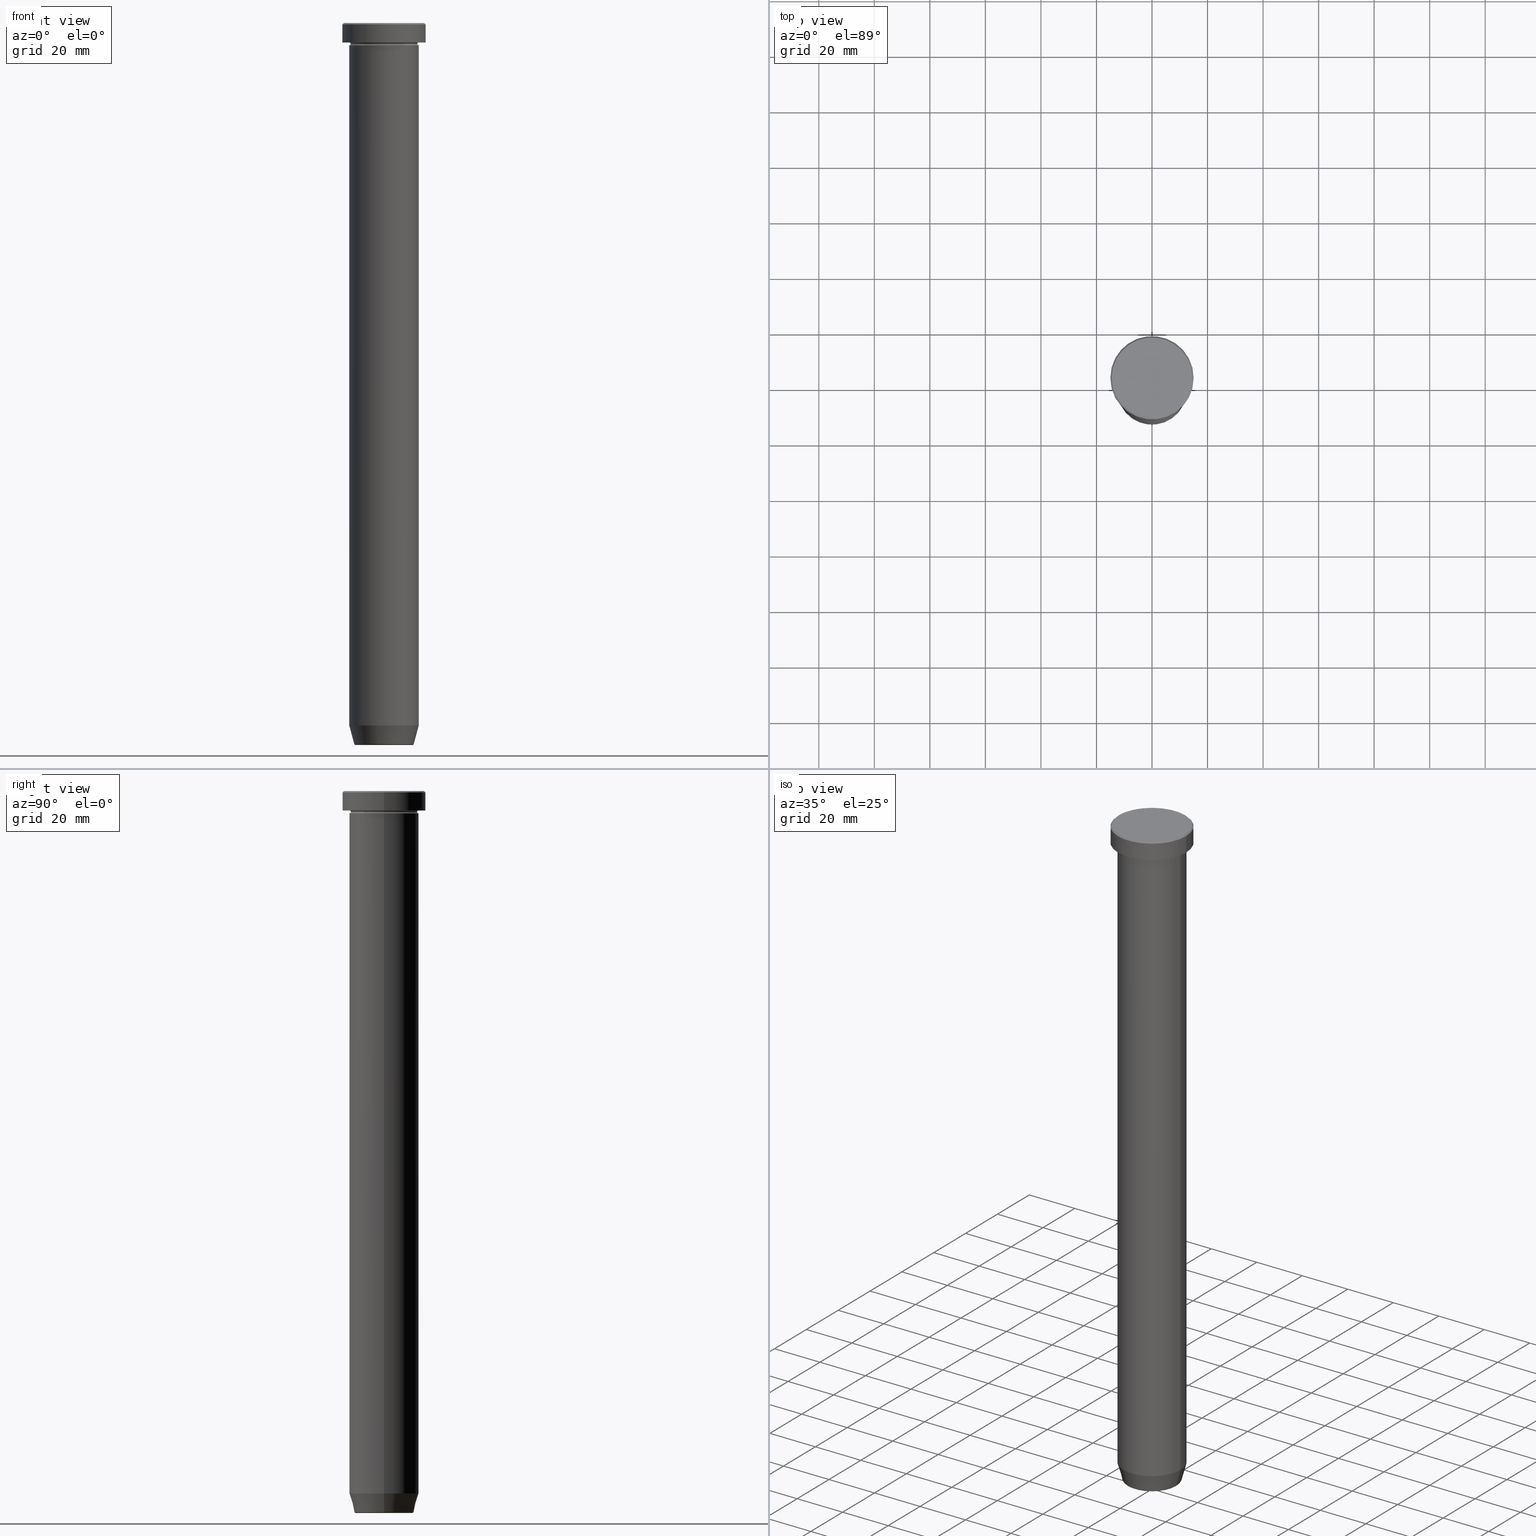
[diagram: canonical four-view strip — front | top / right | iso, engineering-drawing reading convention]
A machine part, canonical four-view strip (front | top / right | iso — engineering-drawing reading convention). The complete STEP part file that produces these views, byte-faithful:
ISO-10303-21;
HEADER;
FILE_DESCRIPTION (( 'STEP AP203' ),
    '1' );
FILE_NAME ('bdec.STEP',
    '2024-01-02T19:18:27',
    ( '' ),
    ( '' ),
    'SwSTEP 2.0',
    'SolidWorks 2019',
    '' );
FILE_SCHEMA (( 'CONFIG_CONTROL_DESIGN' ));
ENDSEC;

DATA;
#1 = PERSON_AND_ORGANIZATION ( #262, #277 ) ;
#2 = ADVANCED_FACE ( 'NONE', ( #326 ), #289, .T. ) ;
#3 = APPROVAL_STATUS ( 'not_yet_approved' ) ;
#4 = AXIS2_PLACEMENT_3D ( 'NONE', #107, #199, #596 ) ;
#5 = AXIS2_PLACEMENT_3D ( 'NONE', #553, #90, #412 ) ;
#6 = PERSON_AND_ORGANIZATION ( #262, #277 ) ;
#7 = LINE ( 'NONE', #194, #243 ) ;
#8 = DATE_AND_TIME ( #328, #65 ) ;
#9 = LINE ( 'NONE', #290, #281 ) ;
#10 = COORDINATED_UNIVERSAL_TIME_OFFSET ( 1, 0, .AHEAD. ) ;
#11 = EDGE_CURVE ( 'NONE', #578, #183, #291, .T. ) ;
#12 = DIRECTION ( 'NONE',  ( -1.000000000000000000, 0.000000000000000000, 0.000000000000000000 ) ) ;
#13 = AXIS2_PLACEMENT_3D ( 'NONE', #45, #416, #470 ) ;
#14 = DIRECTION ( 'NONE',  ( 0.000000000000000000, -0.000000000000000000, 1.000000000000000000 ) ) ;
#15 = VERTEX_POINT ( 'NONE', #564 ) ;
#16 = ORIENTED_EDGE ( 'NONE', *, *, #244, .T. ) ;
#17 = DIRECTION ( 'NONE',  ( -1.000000000000000000, 0.000000000000000000, 0.000000000000000000 ) ) ;
#18 = DIRECTION ( 'NONE',  ( -1.000000000000000000, 1.224646799147353454E-16, 0.000000000000000000 ) ) ;
#19 = CARTESIAN_POINT ( 'NONE',  ( 0.000000000000000000, 0.000000000000000000, -8.000000000000000000 ) ) ;
#20 = ORIENTED_EDGE ( 'NONE', *, *, #498, .T. ) ;
#21 = DIRECTION ( 'NONE',  ( -0.000000000000000000, -0.000000000000000000, 1.000000000000000000 ) ) ;
#22 = DIRECTION ( 'NONE',  ( 1.224646799147353207E-16, 1.000000000000000000, 0.000000000000000000 ) ) ;
#23 = EDGE_CURVE ( 'NONE', #15, #209, #475, .T. ) ;
#24 = LINE ( 'NONE', #66, #190 ) ;
#25 = CIRCLE ( 'NONE', #316, 15.00000000000000000 ) ;
#26 = EDGE_LOOP ( 'NONE', ( #198, #92 ) ) ;
#27 = CARTESIAN_POINT ( 'NONE',  ( -10.24069215899266361, 1.283696036640843164E-15, -260.0000000000000000 ) ) ;
#28 = CARTESIAN_POINT ( 'NONE',  ( -12.50000000000000000, 1.530808498934191521E-15, -7.500000000000000000 ) ) ;
#29 = CYLINDRICAL_SURFACE ( 'NONE', #221, 12.50000000000000000 ) ;
#30 = ORIENTED_EDGE ( 'NONE', *, *, #597, .T. ) ;
#31 = DIRECTION ( 'NONE',  ( 0.000000000000000000, 0.000000000000000000, -1.000000000000000000 ) ) ;
#32 = CARTESIAN_POINT ( 'NONE',  ( 0.000000000000000000, 2.571758278209441582E-14, -260.0000000000000000 ) ) ;
#33 = ORIENTED_EDGE ( 'NONE', *, *, #473, .F. ) ;
#34 = CARTESIAN_POINT ( 'NONE',  ( 0.000000000000000000, 0.000000000000000000, -6.999999999999999112 ) ) ;
#35 = ADVANCED_FACE ( 'NONE', ( #114 ), #196, .F. ) ;
#36 = CARTESIAN_POINT ( 'NONE',  ( 15.00000000000000000, 0.000000000000000000, -0.4999999999999831246 ) ) ;
#37 = AXIS2_PLACEMENT_3D ( 'NONE', #128, #176, #598 ) ;
#38 = ORIENTED_EDGE ( 'NONE', *, *, #238, .F. ) ;
#39 = CC_DESIGN_APPROVAL ( #103, ( #432 ) ) ;
#40 = CARTESIAN_POINT ( 'NONE',  ( -15.00000000000000000, 1.836970198721029589E-15, -0.4999999999999831246 ) ) ;
#41 = ORIENTED_EDGE ( 'NONE', *, *, #594, .F. ) ;
#42 = CC_DESIGN_PERSON_AND_ORGANIZATION_ASSIGNMENT ( #375, #560, ( #305 ) ) ;
#43 = ORIENTED_EDGE ( 'NONE', *, *, #566, .T. ) ;
#44 = DIRECTION ( 'NONE',  ( 1.000000000000000000, 0.000000000000000000, 0.000000000000000000 ) ) ;
#45 = CARTESIAN_POINT ( 'NONE',  ( 0.000000000000000000, 15.00000000000000000, -6.999999999999999112 ) ) ;
#46 = CARTESIAN_POINT ( 'NONE',  ( 0.000000000000000000, 0.000000000000000000, 0.000000000000000000 ) ) ;
#47 = DIRECTION ( 'NONE',  ( 1.000000000000000000, 0.000000000000000000, 0.000000000000000000 ) ) ;
#48 = AXIS2_PLACEMENT_3D ( 'NONE', #387, #153, #342 ) ;
#49 = DIRECTION ( 'NONE',  ( -1.000000000000000000, 0.000000000000000000, 0.000000000000000000 ) ) ;
#50 = CARTESIAN_POINT ( 'NONE',  ( 0.000000000000000000, 0.000000000000000000, 0.000000000000000000 ) ) ;
#51 = ADVANCED_FACE ( 'NONE', ( #384 ), #582, .T. ) ;
#52 = CIRCLE ( 'NONE', #222, 10.24069215899266361 ) ;
#53 = LOCAL_TIME ( 20, 18, 27.00000000000000000, #285 ) ;
#54 = PERSON_AND_ORGANIZATION ( #262, #277 ) ;
#55 = DIRECTION ( 'NONE',  ( -0.000000000000000000, -0.000000000000000000, 1.000000000000000000 ) ) ;
#56 = COORDINATED_UNIVERSAL_TIME_OFFSET ( 1, 0, .AHEAD. ) ;
#57 = ADVANCED_FACE ( 'NONE', ( #208 ), #337, .T. ) ;
#58 = FACE_OUTER_BOUND ( 'NONE', #67, .T. ) ;
#59 = CIRCLE ( 'NONE', #139, 12.00000000000000000 ) ;
#60 = ADVANCED_FACE ( 'NONE', ( #284 ), #525, .T. ) ;
#61 = DIRECTION ( 'NONE',  ( -1.000000000000000000, 0.000000000000000000, 0.000000000000000000 ) ) ;
#62 = ORIENTED_EDGE ( 'NONE', *, *, #360, .T. ) ;
#63 = CARTESIAN_POINT ( 'NONE',  ( -12.50000000000000000, 0.000000000000000000, -7.500000000000000000 ) ) ;
#64 = AXIS2_PLACEMENT_3D ( 'NONE', #392, #303, #450 ) ;
#65 = LOCAL_TIME ( 20, 18, 27.00000000000000000, #418 ) ;
#66 = CARTESIAN_POINT ( 'NONE',  ( 12.50000000000000000, 0.000000000000000000, 0.000000000000000000 ) ) ;
#67 = EDGE_LOOP ( 'NONE', ( #533, #583 ) ) ;
#68 = LINE ( 'NONE', #444, #173 ) ;
#69 = EDGE_LOOP ( 'NONE', ( #253, #180, #362, #592 ) ) ;
#70 = DIRECTION ( 'NONE',  ( -1.000000000000000000, 1.224646799147353454E-16, 0.000000000000000000 ) ) ;
#71 = DIRECTION ( 'NONE',  ( 0.000000000000000000, -1.000000000000000000, 0.000000000000000000 ) ) ;
#72 = ORIENTED_EDGE ( 'NONE', *, *, #171, .T. ) ;
#73 = DIRECTION ( 'NONE',  ( 0.000000000000000000, -0.000000000000000000, 1.000000000000000000 ) ) ;
#74 = AXIS2_PLACEMENT_3D ( 'NONE', #456, #126, #85 ) ;
#75 = CIRCLE ( 'NONE', #584, 10.72365507213718949 ) ;
#76 = CARTESIAN_POINT ( 'NONE',  ( 12.50000000000000000, 0.000000000000000000, -54.99999999999999289 ) ) ;
#77 = CIRCLE ( 'NONE', #550, 0.5000000000000004441 ) ;
#78 = ORIENTED_EDGE ( 'NONE', *, *, #137, .F. ) ;
#79 = CARTESIAN_POINT ( 'NONE',  ( 0.000000000000000000, 0.000000000000000000, 0.000000000000000000 ) ) ;
#80 = DIRECTION ( 'NONE',  ( 1.000000000000000000, 0.000000000000000000, 0.000000000000000000 ) ) ;
#81 = ORIENTED_EDGE ( 'NONE', *, *, #23, .F. ) ;
#82 = CARTESIAN_POINT ( 'NONE',  ( 0.000000000000000000, 0.000000000000000000, -54.99999999999999289 ) ) ;
#83 = EDGE_CURVE ( 'NONE', #442, #314, #86, .T. ) ;
#84 = FACE_OUTER_BOUND ( 'NONE', #256, .T. ) ;
#85 = DIRECTION ( 'NONE',  ( 1.000000000000000000, 0.000000000000000000, 0.000000000000000000 ) ) ;
#86 = CIRCLE ( 'NONE', #270, 12.50000000000000000 ) ;
#87 = EDGE_LOOP ( 'NONE', ( #572, #72 ) ) ;
#88 = VECTOR ( 'NONE', #397, 1000.000000000000000 ) ;
#89 = VERTEX_POINT ( 'NONE', #441 ) ;
#90 = DIRECTION ( 'NONE',  ( -0.000000000000000000, -0.000000000000000000, 1.000000000000000000 ) ) ;
#91 = SECURITY_CLASSIFICATION ( '', '', #144 ) ;
#92 = ORIENTED_EDGE ( 'NONE', *, *, #83, .F. ) ;
#93 = APPLICATION_PROTOCOL_DEFINITION ( 'international standard', 'config_control_design', 1994, #512 ) ;
#94 = EDGE_CURVE ( 'NONE', #314, #15, #24, .T. ) ;
#95 = DIRECTION ( 'NONE',  ( -0.000000000000000000, -0.000000000000000000, 1.000000000000000000 ) ) ;
#96 = CARTESIAN_POINT ( 'NONE',  ( -12.50000000000000000, 1.530808498934191521E-15, -54.99999999999999289 ) ) ;
#97 = CIRCLE ( 'NONE', #511, 12.00000000000000000 ) ;
#98 = DIRECTION ( 'NONE',  ( 1.000000000000000000, 0.000000000000000000, 0.000000000000000000 ) ) ;
#99 = AXIS2_PLACEMENT_3D ( 'NONE', #507, #220, #125 ) ;
#100 = DIRECTION ( 'NONE',  ( 1.000000000000000000, 0.000000000000000000, 0.000000000000000000 ) ) ;
#101 = EDGE_CURVE ( 'NONE', #226, #227, #97, .T. ) ;
#102 = APPROVAL_DATE_TIME ( #562, #574 ) ;
#103 = APPROVAL ( #237, 'NEUR�EN�' ) ;
#104 = AXIS2_PLACEMENT_3D ( 'NONE', #363, #267, #229 ) ;
#105 = PERSON_AND_ORGANIZATION ( #262, #277 ) ;
#106 = VERTEX_POINT ( 'NONE', #246 ) ;
#107 = CARTESIAN_POINT ( 'NONE',  ( 0.000000000000000000, 12.50000000000000000, -54.99999999999999289 ) ) ;
#108 = CC_DESIGN_PERSON_AND_ORGANIZATION_ASSIGNMENT ( #189, #371, ( #91 ) ) ;
#109 = CARTESIAN_POINT ( 'NONE',  ( 0.000000000000000000, 0.000000000000000000, 0.000000000000000000 ) ) ;
#110 = DIRECTION ( 'NONE',  ( 0.000000000000000000, 0.000000000000000000, -1.000000000000000000 ) ) ;
#111 = AXIS2_PLACEMENT_3D ( 'NONE', #352, #536, #123 ) ;
#112 = CIRCLE ( 'NONE', #500, 0.5000000000000004441 ) ;
#113 = CC_DESIGN_APPROVAL ( #574, ( #305 ) ) ;
#114 = FACE_OUTER_BOUND ( 'NONE', #119, .T. ) ;
#115 = CARTESIAN_POINT ( 'NONE',  ( -12.50000000000000000, 1.530808498934191521E-15, -54.99999999999999289 ) ) ;
#116 = ADVANCED_FACE ( 'NONE', ( #380 ), #427, .T. ) ;
#117 = ORIENTED_EDGE ( 'NONE', *, *, #188, .F. ) ;
#118 = LINE ( 'NONE', #300, #523 ) ;
#119 = EDGE_LOOP ( 'NONE', ( #501, #261, #241, #33 ) ) ;
#120 = FACE_OUTER_BOUND ( 'NONE', #299, .T. ) ;
#121 = CONICAL_SURFACE ( 'NONE', #415, 10.62435565298213902, 0.2617993877991495744 ) ;
#122 = EDGE_CURVE ( 'NONE', #227, #226, #59, .T. ) ;
#123 = DIRECTION ( 'NONE',  ( 1.000000000000000000, 0.000000000000000000, 0.000000000000000000 ) ) ;
#124 = ORIENTED_EDGE ( 'NONE', *, *, #473, .T. ) ;
#125 = DIRECTION ( 'NONE',  ( 1.000000000000000000, 0.000000000000000000, 0.000000000000000000 ) ) ;
#126 = DIRECTION ( 'NONE',  ( -0.000000000000000000, -0.000000000000000000, 1.000000000000000000 ) ) ;
#127 = EDGE_LOOP ( 'NONE', ( #319, #150 ) ) ;
#128 = CARTESIAN_POINT ( 'NONE',  ( 0.000000000000000000, 0.000000000000000000, -54.99999999999999289 ) ) ;
#129 = CARTESIAN_POINT ( 'NONE',  ( 12.50000000000000000, 0.000000000000000000, 0.000000000000000000 ) ) ;
#130 = PRODUCT_RELATED_PRODUCT_CATEGORY ( 'detail', '', ( #591 ) ) ;
#131 = DIRECTION ( 'NONE',  ( -0.000000000000000000, -0.000000000000000000, 1.000000000000000000 ) ) ;
#132 = VERTEX_POINT ( 'NONE', #76 ) ;
#133 = ORIENTED_EDGE ( 'NONE', *, *, #167, .F. ) ;
#134 = ORIENTED_EDGE ( 'NONE', *, *, #122, .F. ) ;
#135 = DIRECTION ( 'NONE',  ( 0.000000000000000000, 0.000000000000000000, -1.000000000000000000 ) ) ;
#136 = DATE_TIME_ROLE ( 'creation_date' ) ;
#137 = EDGE_CURVE ( 'NONE', #227, #15, #487, .T. ) ;
#138 = DATE_AND_TIME ( #331, #394 ) ;
#139 = AXIS2_PLACEMENT_3D ( 'NONE', #437, #499, #168 ) ;
#140 = CIRCLE ( 'NONE', #145, 10.72365507213718949 ) ;
#141 = AXIS2_PLACEMENT_3D ( 'NONE', #50, #476, #100 ) ;
#142 = DIRECTION ( 'NONE',  ( -0.000000000000000000, -0.000000000000000000, 1.000000000000000000 ) ) ;
#143 = ORIENTED_EDGE ( 'NONE', *, *, #11, .T. ) ;
#144 = SECURITY_CLASSIFICATION_LEVEL ( 'unclassified' ) ;
#145 = AXIS2_PLACEMENT_3D ( 'NONE', #187, #556, #544 ) ;
#146 = CARTESIAN_POINT ( 'NONE',  ( 0.000000000000000000, 0.000000000000000000, -6.999999999999999112 ) ) ;
#147 = ORIENTED_EDGE ( 'NONE', *, *, #311, .F. ) ;
#148 = FACE_OUTER_BOUND ( 'NONE', #347, .T. ) ;
#149 = DIRECTION ( 'NONE',  ( -0.000000000000000000, -0.000000000000000000, 1.000000000000000000 ) ) ;
#150 = ORIENTED_EDGE ( 'NONE', *, *, #160, .T. ) ;
#151 = LINE ( 'NONE', #297, #460 ) ;
#152 = APPLICATION_CONTEXT ( 'configuration controlled 3d designs of mechanical parts and assemblies' ) ;
#153 = DIRECTION ( 'NONE',  ( -0.000000000000000000, -0.000000000000000000, 1.000000000000000000 ) ) ;
#154 = DIRECTION ( 'NONE',  ( 1.000000000000000000, 0.000000000000000000, 0.000000000000000000 ) ) ;
#155 = ADVANCED_FACE ( 'NONE', ( #448 ), #29, .T. ) ;
#156 = ORIENTED_EDGE ( 'NONE', *, *, #122, .T. ) ;
#157 = DIRECTION ( 'NONE',  ( -1.224646799147353207E-16, 1.000000000000000000, 0.000000000000000000 ) ) ;
#158 = TOROIDAL_SURFACE ( 'NONE', #515, 12.50000000000000000, 0.5000000000000000000 ) ;
#159 = CIRCLE ( 'NONE', #236, 15.00000000000000000 ) ;
#160 = EDGE_CURVE ( 'NONE', #578, #493, #372, .T. ) ;
#161 = ORIENTED_EDGE ( 'NONE', *, *, #179, .T. ) ;
#162 = CARTESIAN_POINT ( 'NONE',  ( 12.50000000000000000, 1.530808498934191521E-15, -7.500000000000000000 ) ) ;
#163 = CARTESIAN_POINT ( 'NONE',  ( 12.50000000000000000, 0.000000000000000000, -54.99999999999999289 ) ) ;
#164 = APPROVAL ( #3, 'NEUR�EN�' ) ;
#165 = DIRECTION ( 'NONE',  ( 0.7071067811865463515, 8.659560562354919300E-17, -0.7071067811865487940 ) ) ;
#166 = ORIENTED_EDGE ( 'NONE', *, *, #360, .F. ) ;
#167 = EDGE_CURVE ( 'NONE', #493, #578, #413, .T. ) ;
#168 = DIRECTION ( 'NONE',  ( 1.000000000000000000, 0.000000000000000000, 0.000000000000000000 ) ) ;
#169 = ORIENTED_EDGE ( 'NONE', *, *, #11, .F. ) ;
#170 = DIRECTION ( 'NONE',  ( -0.000000000000000000, -1.000000000000000000, -0.000000000000000000 ) ) ;
#171 = EDGE_CURVE ( 'NONE', #538, #132, #459, .T. ) ;
#172 = VECTOR ( 'NONE', #131, 1000.000000000000000 ) ;
#173 = VECTOR ( 'NONE', #390, 1000.000000000000000 ) ;
#174 = CARTESIAN_POINT ( 'NONE',  ( 12.50000000000000000, 0.000000000000000000, -7.500000000000000000 ) ) ;
#175 = ORIENTED_EDGE ( 'NONE', *, *, #472, .T. ) ;
#176 = DIRECTION ( 'NONE',  ( -0.000000000000000000, -0.000000000000000000, 1.000000000000000000 ) ) ;
#177 = EDGE_LOOP ( 'NONE', ( #20, #453, #568, #117 ) ) ;
#178 = CARTESIAN_POINT ( 'NONE',  ( 0.000000000000000000, 0.000000000000000000, -260.0000000000000000 ) ) ;
#179 = EDGE_CURVE ( 'NONE', #209, #15, #431, .T. ) ;
#180 = ORIENTED_EDGE ( 'NONE', *, *, #440, .T. ) ;
#181 = CARTESIAN_POINT ( 'NONE',  ( 0.000000000000000000, 0.000000000000000000, -54.99999999999999289 ) ) ;
#182 = CIRCLE ( 'NONE', #593, 10.24069215899266361 ) ;
#183 = VERTEX_POINT ( 'NONE', #36 ) ;
#184 =( NAMED_UNIT ( * ) PLANE_ANGLE_UNIT ( ) SI_UNIT ( $, .RADIAN. ) );
#185 = LOCAL_TIME ( 20, 18, 27.00000000000000000, #232 ) ;
#186 = FACE_BOUND ( 'NONE', #542, .T. ) ;
#187 = CARTESIAN_POINT ( 'NONE',  ( 0.000000000000000000, 0.000000000000000000, -259.6294095225512706 ) ) ;
#188 = EDGE_CURVE ( 'NONE', #585, #183, #405, .T. ) ;
#189 = PERSON_AND_ORGANIZATION ( #262, #277 ) ;
#190 = VECTOR ( 'NONE', #55, 1000.000000000000000 ) ;
#191 = AXIS2_PLACEMENT_3D ( 'NONE', #174, #462, #255 ) ;
#192 = AXIS2_PLACEMENT_3D ( 'NONE', #82, #454, #539 ) ;
#193 = PERSON_AND_ORGANIZATION_ROLE ( 'creator' ) ;
#194 = CARTESIAN_POINT ( 'NONE',  ( -12.50000000000000000, 1.530808498934191521E-15, 0.000000000000000000 ) ) ;
#195 = ADVANCED_FACE ( 'NONE', ( #313 ), #513, .T. ) ;
#196 = TOROIDAL_SURFACE ( 'NONE', #321, 12.50000000000000000, 0.5000000000000000000 ) ;
#197 = DIRECTION ( 'NONE',  ( 1.000000000000000000, 0.000000000000000000, 0.000000000000000000 ) ) ;
#198 = ORIENTED_EDGE ( 'NONE', *, *, #566, .F. ) ;
#199 = DIRECTION ( 'NONE',  ( 0.000000000000000000, 0.000000000000000000, -1.000000000000000000 ) ) ;
#200 = DIRECTION ( 'NONE',  ( -0.000000000000000000, -0.000000000000000000, 1.000000000000000000 ) ) ;
#201 = EDGE_LOOP ( 'NONE', ( #580, #367 ) ) ;
#202 = CARTESIAN_POINT ( 'NONE',  ( -14.50000000000001776, 0.000000000000000000, 0.000000000000000000 ) ) ;
#203 = EDGE_CURVE ( 'NONE', #259, #106, #334, .T. ) ;
#204 = ORIENTED_EDGE ( 'NONE', *, *, #179, .F. ) ;
#205 = CYLINDRICAL_SURFACE ( 'NONE', #64, 12.50000000000000000 ) ;
#206 = CARTESIAN_POINT ( 'NONE',  ( 10.24069215899266361, 0.000000000000000000, -259.5000000000000000 ) ) ;
#207 = UNCERTAINTY_MEASURE_WITH_UNIT (LENGTH_MEASURE( 1.000000000000000082E-05 ), #408, 'distance_accuracy_value', 'NONE');
#208 = FACE_OUTER_BOUND ( 'NONE', #127, .T. ) ;
#209 = VERTEX_POINT ( 'NONE', #481 ) ;
#210 = CARTESIAN_POINT ( 'NONE',  ( 0.000000000000000000, 0.000000000000000000, -259.6294095225512706 ) ) ;
#211 = AXIS2_PLACEMENT_3D ( 'NONE', #109, #286, #61 ) ;
#212 = TOROIDAL_SURFACE ( 'NONE', #346, 10.24069215899266361, 0.5000000000000000000 ) ;
#213 = CARTESIAN_POINT ( 'NONE',  ( 0.000000000000000000, 0.000000000000000000, -7.500000000000000000 ) ) ;
#214 = ORIENTED_EDGE ( 'NONE', *, *, #23, .T. ) ;
#215 = CYLINDRICAL_SURFACE ( 'NONE', #48, 12.50000000000000000 ) ;
#216 = DIRECTION ( 'NONE',  ( -0.000000000000000000, -0.000000000000000000, 1.000000000000000000 ) ) ;
#217 = EDGE_LOOP ( 'NONE', ( #219, #269, #161, #78 ) ) ;
#218 = DIRECTION ( 'NONE',  ( 0.000000000000000000, 0.000000000000000000, -1.000000000000000000 ) ) ;
#219 = ORIENTED_EDGE ( 'NONE', *, *, #101, .F. ) ;
#220 = DIRECTION ( 'NONE',  ( -0.000000000000000000, -0.000000000000000000, 1.000000000000000000 ) ) ;
#221 = AXIS2_PLACEMENT_3D ( 'NONE', #357, #216, #80 ) ;
#222 = AXIS2_PLACEMENT_3D ( 'NONE', #439, #31, #490 ) ;
#223 = ORIENTED_EDGE ( 'NONE', *, *, #504, .T. ) ;
#224 = DIRECTION ( 'NONE',  ( -0.000000000000000000, -0.000000000000000000, 1.000000000000000000 ) ) ;
#225 = ADVANCED_FACE ( 'NONE', ( #426 ), #158, .F. ) ;
#226 = VERTEX_POINT ( 'NONE', #551 ) ;
#227 = VERTEX_POINT ( 'NONE', #369 ) ;
#228 = CIRCLE ( 'NONE', #563, 15.00000000000000000 ) ;
#229 = DIRECTION ( 'NONE',  ( 1.000000000000000000, 0.000000000000000000, 0.000000000000000000 ) ) ;
#230 = ADVANCED_FACE ( 'NONE', ( #148 ), #283, .T. ) ;
#231 = CALENDAR_DATE ( 2024, 2, 1 ) ;
#232 = COORDINATED_UNIVERSAL_TIME_OFFSET ( 1, 0, .AHEAD. ) ;
#233 = AXIS2_PLACEMENT_3D ( 'NONE', #46, #428, #298 ) ;
#234 = PERSON_AND_ORGANIZATION_ROLE ( 'creator' ) ;
#235 = AXIS2_PLACEMENT_3D ( 'NONE', #518, #379, #477 ) ;
#236 = AXIS2_PLACEMENT_3D ( 'NONE', #458, #310, #510 ) ;
#237 = APPROVAL_STATUS ( 'not_yet_approved' ) ;
#238 = EDGE_CURVE ( 'NONE', #382, #353, #9, .T. ) ;
#239 = DIRECTION ( 'NONE',  ( -0.000000000000000000, -0.000000000000000000, 1.000000000000000000 ) ) ;
#240 = APPROVAL_ROLE ( '' ) ;
#241 = ORIENTED_EDGE ( 'NONE', *, *, #244, .F. ) ;
#242 = CARTESIAN_POINT ( 'NONE',  ( 0.000000000000000000, 0.000000000000000000, -6.999999999999999112 ) ) ;
#243 = VECTOR ( 'NONE', #376, 1000.000000000000000 ) ;
#244 = EDGE_CURVE ( 'NONE', #106, #259, #446, .T. ) ;
#245 = LOCAL_TIME ( 20, 18, 27.00000000000000000, #10 ) ;
#246 = CARTESIAN_POINT ( 'NONE',  ( -12.50000000000000000, 0.000000000000000000, -6.999999999999999112 ) ) ;
#247 = ORIENTED_EDGE ( 'NONE', *, *, #268, .F. ) ;
#248 = DIRECTION ( 'NONE',  ( 1.000000000000000000, 0.000000000000000000, 0.000000000000000000 ) ) ;
#249 = DIRECTION ( 'NONE',  ( 1.000000000000000000, 0.000000000000000000, 0.000000000000000000 ) ) ;
#250 = ORIENTED_EDGE ( 'NONE', *, *, #356, .F. ) ;
#251 = CC_DESIGN_PERSON_AND_ORGANIZATION_ASSIGNMENT ( #425, #234, ( #432 ) ) ;
#252 = DIRECTION ( 'NONE',  ( 1.000000000000000000, 0.000000000000000000, 0.000000000000000000 ) ) ;
#253 = ORIENTED_EDGE ( 'NONE', *, *, #521, .F. ) ;
#254 = EDGE_CURVE ( 'NONE', #546, #461, #182, .T. ) ;
#255 = DIRECTION ( 'NONE',  ( 0.000000000000000000, 0.000000000000000000, -1.000000000000000000 ) ) ;
#256 = EDGE_LOOP ( 'NONE', ( #43, #223, #81, #411 ) ) ;
#257 = CC_DESIGN_PERSON_AND_ORGANIZATION_ASSIGNMENT ( #54, #474, ( #591 ) ) ;
#258 = DIRECTION ( 'NONE',  ( 1.000000000000000000, 0.000000000000000000, 0.000000000000000000 ) ) ;
#259 = VERTEX_POINT ( 'NONE', #555 ) ;
#260 = FACE_OUTER_BOUND ( 'NONE', #296, .T. ) ;
#261 = ORIENTED_EDGE ( 'NONE', *, *, #491, .T. ) ;
#262 = PERSON ( 'NEUR�EN�', 'NEUR�EN�', 'NEUR�EN�', ('NEUR�EN�'), ('NEUR�EN�'), ('NEUR�EN�') ) ;
#263 = ADVANCED_FACE ( 'NONE', ( #186, #58 ), #466, .T. ) ;
#264 = CONICAL_SURFACE ( 'NONE', #5, 10.62435565298213902, 0.2617993877991495744 ) ;
#265 = CARTESIAN_POINT ( 'NONE',  ( 15.00000000000000000, 0.000000000000000000, 0.000000000000000000 ) ) ;
#266 = ORIENTED_EDGE ( 'NONE', *, *, #83, .T. ) ;
#267 = DIRECTION ( 'NONE',  ( -0.000000000000000000, -0.000000000000000000, 1.000000000000000000 ) ) ;
#268 = EDGE_CURVE ( 'NONE', #519, #538, #7, .T. ) ;
#269 = ORIENTED_EDGE ( 'NONE', *, *, #272, .T. ) ;
#270 = AXIS2_PLACEMENT_3D ( 'NONE', #445, #149, #249 ) ;
#271 = CARTESIAN_POINT ( 'NONE',  ( 0.000000000000000000, 0.000000000000000000, -260.0000000000000000 ) ) ;
#272 = EDGE_CURVE ( 'NONE', #226, #209, #393, .T. ) ;
#273 = FACE_OUTER_BOUND ( 'NONE', #552, .T. ) ;
#274 = ADVANCED_FACE ( 'NONE', ( #84 ), #215, .T. ) ;
#275 = DIRECTION ( 'NONE',  ( -1.000000000000000000, 0.000000000000000000, 0.000000000000000000 ) ) ;
#276 = AXIS2_PLACEMENT_3D ( 'NONE', #242, #386, #569 ) ;
#277 = ORGANIZATION ( 'NEUR�EN�', 'NEUR�EN�', '' ) ;
#278 = MANIFOLD_SOLID_BREP ( 'Zkosen�1', #547 ) ;
#279 = DATE_AND_TIME ( #471, #53 ) ;
#280 = AXIS2_PLACEMENT_3D ( 'NONE', #530, #14, #567 ) ;
#281 = VECTOR ( 'NONE', #486, 1000.000000000000000 ) ;
#282 = CIRCLE ( 'NONE', #489, 0.5000000000000004441 ) ;
#283 = CYLINDRICAL_SURFACE ( 'NONE', #235, 12.50000000000000000 ) ;
#284 = FACE_OUTER_BOUND ( 'NONE', #177, .T. ) ;
#285 = COORDINATED_UNIVERSAL_TIME_OFFSET ( 1, 0, .AHEAD. ) ;
#286 = DIRECTION ( 'NONE',  ( 0.000000000000000000, 0.000000000000000000, -1.000000000000000000 ) ) ;
#287 = EDGE_CURVE ( 'NONE', #546, #89, #112, .T. ) ;
#288 = ORIENTED_EDGE ( 'NONE', *, *, #472, .F. ) ;
#289 = CONICAL_SURFACE ( 'NONE', #233, 14.50000000000001776, 0.7853981633974466137 ) ;
#290 = CARTESIAN_POINT ( 'NONE',  ( -15.00000000000000000, 1.836970198721029589E-15, 0.000000000000000000 ) ) ;
#291 = LINE ( 'NONE', #576, #561 ) ;
#292 = FACE_OUTER_BOUND ( 'NONE', #549, .T. ) ;
#293 = CIRCLE ( 'NONE', #37, 12.50000000000000000 ) ;
#294 = CC_DESIGN_DATE_AND_TIME_ASSIGNMENT ( #323, #420, ( #91 ) ) ;
#295 = CARTESIAN_POINT ( 'NONE',  ( 0.000000000000000000, 0.000000000000000000, 0.000000000000000000 ) ) ;
#296 = EDGE_LOOP ( 'NONE', ( #463, #388, #385, #535 ) ) ;
#297 = CARTESIAN_POINT ( 'NONE',  ( -12.50000000000000000, 1.530808498934191521E-15, 0.000000000000000000 ) ) ;
#298 = DIRECTION ( 'NONE',  ( -1.000000000000000000, 0.000000000000000000, 0.000000000000000000 ) ) ;
#299 = EDGE_LOOP ( 'NONE', ( #517, #156, #124, #506 ) ) ;
#300 = CARTESIAN_POINT ( 'NONE',  ( -10.62435565298213902, 1.301108314342766318E-15, -260.0000000000000000 ) ) ;
#301 = AXIS2_PLACEMENT_3D ( 'NONE', #19, #200, #154 ) ;
#302 = EDGE_LOOP ( 'NONE', ( #398, #143, #407, #288 ) ) ;
#303 = DIRECTION ( 'NONE',  ( -0.000000000000000000, -0.000000000000000000, 1.000000000000000000 ) ) ;
#304 = AXIS2_PLACEMENT_3D ( 'NONE', #32, #73, #400 ) ;
#305 = PRODUCT_DEFINITION_FORMATION_WITH_SPECIFIED_SOURCE ( 'LIBOVOLN�', '', #591, .NOT_KNOWN. ) ;
#306 = CARTESIAN_POINT ( 'NONE',  ( 0.000000000000000000, 0.000000000000000000, 0.000000000000000000 ) ) ;
#307 = ORIENTED_EDGE ( 'NONE', *, *, #570, .F. ) ;
#308 = DIRECTION ( 'NONE',  ( 0.000000000000000000, 0.000000000000000000, -1.000000000000000000 ) ) ;
#309 = ORIENTED_EDGE ( 'NONE', *, *, #171, .F. ) ;
#310 = DIRECTION ( 'NONE',  ( 0.000000000000000000, 0.000000000000000000, -1.000000000000000000 ) ) ;
#311 = EDGE_CURVE ( 'NONE', #89, #391, #68, .T. ) ;
#312 = DIRECTION ( 'NONE',  ( -0.000000000000000000, -0.000000000000000000, 1.000000000000000000 ) ) ;
#313 = FACE_OUTER_BOUND ( 'NONE', #26, .T. ) ;
#314 = VERTEX_POINT ( 'NONE', #163 ) ;
#315 = PLANE ( 'NONE',  #192 ) ;
#316 = AXIS2_PLACEMENT_3D ( 'NONE', #34, #467, #403 ) ;
#317 = APPROVAL_PERSON_ORGANIZATION ( #105, #164, #480 ) ;
#318 = ORIENTED_EDGE ( 'NONE', *, *, #401, .T. ) ;
#319 = ORIENTED_EDGE ( 'NONE', *, *, #167, .T. ) ;
#320 = FACE_OUTER_BOUND ( 'NONE', #69, .T. ) ;
#321 = AXIS2_PLACEMENT_3D ( 'NONE', #488, #395, #571 ) ;
#322 = CARTESIAN_POINT ( 'NONE',  ( 0.000000000000000000, 0.000000000000000000, -7.500000000000000000 ) ) ;
#323 = DATE_AND_TIME ( #526, #185 ) ;
#324 = LINE ( 'NONE', #129, #381 ) ;
#325 = AXIS2_PLACEMENT_3D ( 'NONE', #28, #22, #18 ) ;
#326 = FACE_OUTER_BOUND ( 'NONE', #509, .T. ) ;
#327 = ORIENTED_EDGE ( 'NONE', *, *, #203, .T. ) ;
#328 = CALENDAR_DATE ( 2024, 2, 1 ) ;
#329 = ADVANCED_FACE ( 'NONE', ( #503 ), #349, .F. ) ;
#330 = CLOSED_SHELL ( 'NONE', ( #51, #374, #155, #548, #457, #587, #329, #339 ) ) ;
#331 = CALENDAR_DATE ( 2024, 2, 1 ) ;
#332 = AXIS2_PLACEMENT_3D ( 'NONE', #306, #505, #258 ) ;
#333 = APPROVAL_ROLE ( '' ) ;
#334 = CIRCLE ( 'NONE', #344, 12.50000000000000000 ) ;
#335 = DIRECTION ( 'NONE',  ( 1.000000000000000000, 0.000000000000000000, 0.000000000000000000 ) ) ;
#336 = ADVANCED_FACE ( 'NONE', ( #120 ), #404, .F. ) ;
#337 = PLANE ( 'NONE',  #280 ) ;
#338 = ORIENTED_EDGE ( 'NONE', *, *, #557, .T. ) ;
#339 = ADVANCED_FACE ( 'NONE', ( #260 ), #212, .T. ) ;
#340 = EDGE_LOOP ( 'NONE', ( #358, #402, #250, #396 ) ) ;
#341 = CARTESIAN_POINT ( 'NONE',  ( -15.00000000000000000, 1.836970198721029589E-15, -6.999999999999999112 ) ) ;
#342 = DIRECTION ( 'NONE',  ( 1.000000000000000000, 0.000000000000000000, 0.000000000000000000 ) ) ;
#343 = CARTESIAN_POINT ( 'NONE',  ( 0.000000000000000000, 0.000000000000000000, -259.5000000000000000 ) ) ;
#344 = AXIS2_PLACEMENT_3D ( 'NONE', #430, #366, #12 ) ;
#345 = DIRECTION ( 'NONE',  ( 1.000000000000000000, 0.000000000000000000, 0.000000000000000000 ) ) ;
#346 = AXIS2_PLACEMENT_3D ( 'NONE', #417, #224, #599 ) ;
#347 = EDGE_LOOP ( 'NONE', ( #514, #266, #589, #204 ) ) ;
#348 = DIRECTION ( 'NONE',  ( -1.000000000000000000, -1.224646799147353454E-16, 0.000000000000000000 ) ) ;
#349 = PLANE ( 'NONE',  #304 ) ;
#350 = VERTEX_POINT ( 'NONE', #586 ) ;
#351 = DIRECTION ( 'NONE',  ( -0.000000000000000000, -0.000000000000000000, 1.000000000000000000 ) ) ;
#352 = CARTESIAN_POINT ( 'NONE',  ( 0.000000000000000000, 0.000000000000000000, 0.000000000000000000 ) ) ;
#353 = VERTEX_POINT ( 'NONE', #40 ) ;
#354 = CARTESIAN_POINT ( 'NONE',  ( 0.000000000000000000, 0.000000000000000000, -253.0000000000000000 ) ) ;
#355 = TOROIDAL_SURFACE ( 'NONE', #99, 12.50000000000000000, 0.5000000000000000000 ) ;
#356 = EDGE_CURVE ( 'NONE', #89, #350, #140, .T. ) ;
#357 = CARTESIAN_POINT ( 'NONE',  ( 0.000000000000000000, 0.000000000000000000, 0.000000000000000000 ) ) ;
#358 = ORIENTED_EDGE ( 'NONE', *, *, #451, .F. ) ;
#359 = DIRECTION ( 'NONE',  ( -0.000000000000000000, -0.000000000000000000, 1.000000000000000000 ) ) ;
#360 = EDGE_CURVE ( 'NONE', #391, #132, #324, .T. ) ;
#361 = ORIENTED_EDGE ( 'NONE', *, *, #268, .T. ) ;
#362 = ORIENTED_EDGE ( 'NONE', *, *, #311, .T. ) ;
#363 = CARTESIAN_POINT ( 'NONE',  ( 0.000000000000000000, 0.000000000000000000, -253.0000000000000000 ) ) ;
#364 = AXIS2_PLACEMENT_3D ( 'NONE', #452, #545, #541 ) ;
#365 = AXIS2_PLACEMENT_3D ( 'NONE', #181, #359, #47 ) ;
#366 = DIRECTION ( 'NONE',  ( -0.000000000000000000, -0.000000000000000000, 1.000000000000000000 ) ) ;
#367 = ORIENTED_EDGE ( 'NONE', *, *, #451, .T. ) ;
#368 = CARTESIAN_POINT ( 'NONE',  ( 14.50000000000001776, 1.806354028742346985E-15, 0.000000000000000000 ) ) ;
#369 = CARTESIAN_POINT ( 'NONE',  ( 12.00000000000000000, 0.000000000000000000, -7.500000000000000000 ) ) ;
#370 = SHAPE_DEFINITION_REPRESENTATION ( #406, #482 ) ;
#371 = PERSON_AND_ORGANIZATION_ROLE ( 'classification_officer' ) ;
#372 = CIRCLE ( 'NONE', #111, 14.50000000000001776 ) ;
#373 = AXIS2_PLACEMENT_3D ( 'NONE', #468, #135, #49 ) ;
#374 = ADVANCED_FACE ( 'NONE', ( #409 ), #121, .T. ) ;
#375 = PERSON_AND_ORGANIZATION ( #262, #277 ) ;
#376 = DIRECTION ( 'NONE',  ( -0.000000000000000000, -0.000000000000000000, 1.000000000000000000 ) ) ;
#377 = APPROVAL_STATUS ( 'not_yet_approved' ) ;
#378 = EDGE_CURVE ( 'NONE', #353, #183, #228, .T. ) ;
#379 = DIRECTION ( 'NONE',  ( -0.000000000000000000, -0.000000000000000000, 1.000000000000000000 ) ) ;
#380 = FACE_OUTER_BOUND ( 'NONE', #302, .T. ) ;
#381 = VECTOR ( 'NONE', #312, 1000.000000000000000 ) ;
#382 = VERTEX_POINT ( 'NONE', #341 ) ;
#383 = DIRECTION ( 'NONE',  ( -0.000000000000000000, -0.000000000000000000, 1.000000000000000000 ) ) ;
#384 = FACE_OUTER_BOUND ( 'NONE', #340, .T. ) ;
#385 = ORIENTED_EDGE ( 'NONE', *, *, #287, .T. ) ;
#386 = DIRECTION ( 'NONE',  ( -0.000000000000000000, -0.000000000000000000, 1.000000000000000000 ) ) ;
#387 = CARTESIAN_POINT ( 'NONE',  ( 0.000000000000000000, 0.000000000000000000, 0.000000000000000000 ) ) ;
#388 = ORIENTED_EDGE ( 'NONE', *, *, #254, .F. ) ;
#389 = CARTESIAN_POINT ( 'NONE',  ( -14.50000000000001776, 0.000000000000000000, 0.000000000000000000 ) ) ;
#390 = DIRECTION ( 'NONE',  ( 0.2588190451025209060, 0.000000000000000000, 0.9659258262890682012 ) ) ;
#391 = VERTEX_POINT ( 'NONE', #443 ) ;
#392 = CARTESIAN_POINT ( 'NONE',  ( 0.000000000000000000, 0.000000000000000000, 0.000000000000000000 ) ) ;
#393 = CIRCLE ( 'NONE', #325, 0.5000000000000004441 ) ;
#394 = LOCAL_TIME ( 20, 18, 27.00000000000000000, #56 ) ;
#395 = DIRECTION ( 'NONE',  ( 0.000000000000000000, 0.000000000000000000, -1.000000000000000000 ) ) ;
#396 = ORIENTED_EDGE ( 'NONE', *, *, #287, .F. ) ;
#397 = DIRECTION ( 'NONE',  ( -0.7071067811865463515, 0.000000000000000000, -0.7071067811865487940 ) ) ;
#398 = ORIENTED_EDGE ( 'NONE', *, *, #160, .F. ) ;
#399 = DIRECTION ( 'NONE',  ( -0.000000000000000000, -0.000000000000000000, 1.000000000000000000 ) ) ;
#400 = DIRECTION ( 'NONE',  ( 1.000000000000000000, 0.000000000000000000, 0.000000000000000000 ) ) ;
#401 = EDGE_CURVE ( 'NONE', #519, #391, #516, .T. ) ;
#402 = ORIENTED_EDGE ( 'NONE', *, *, #419, .T. ) ;
#403 = DIRECTION ( 'NONE',  ( 1.000000000000000000, 0.000000000000000000, 0.000000000000000000 ) ) ;
#404 = TOROIDAL_SURFACE ( 'NONE', #373, 12.50000000000000000, 0.5000000000000000000 ) ;
#405 = LINE ( 'NONE', #265, #172 ) ;
#406 = PRODUCT_DEFINITION_SHAPE ( 'NONE', 'NONE',  #432 ) ;
#407 = ORIENTED_EDGE ( 'NONE', *, *, #378, .F. ) ;
#408 =( LENGTH_UNIT ( ) NAMED_UNIT ( * ) SI_UNIT ( .MILLI., .METRE. ) );
#409 = FACE_OUTER_BOUND ( 'NONE', #527, .T. ) ;
#410 = ORIENTED_EDGE ( 'NONE', *, *, #594, .T. ) ;
#411 = ORIENTED_EDGE ( 'NONE', *, *, #94, .F. ) ;
#412 = DIRECTION ( 'NONE',  ( 1.000000000000000000, 0.000000000000000000, 0.000000000000000000 ) ) ;
#413 = CIRCLE ( 'NONE', #332, 14.50000000000001776 ) ;
#414 = AXIS2_PLACEMENT_3D ( 'NONE', #79, #399, #44 ) ;
#415 = AXIS2_PLACEMENT_3D ( 'NONE', #178, #142, #573 ) ;
#416 = DIRECTION ( 'NONE',  ( 0.000000000000000000, 0.000000000000000000, -1.000000000000000000 ) ) ;
#417 = CARTESIAN_POINT ( 'NONE',  ( 0.000000000000000000, 0.000000000000000000, -259.5000000000000000 ) ) ;
#418 = COORDINATED_UNIVERSAL_TIME_OFFSET ( 1, 0, .AHEAD. ) ;
#419 = EDGE_CURVE ( 'NONE', #461, #350, #77, .T. ) ;
#420 = DATE_TIME_ROLE ( 'classification_date' ) ;
#421 = CIRCLE ( 'NONE', #276, 15.00000000000000000 ) ;
#422 = CC_DESIGN_SECURITY_CLASSIFICATION ( #91, ( #305 ) ) ;
#423 = APPLICATION_PROTOCOL_DEFINITION ( 'international standard', 'config_control_design', 1994, #152 ) ;
#424 = DIRECTION ( 'NONE',  ( 0.000000000000000000, 0.000000000000000000, -1.000000000000000000 ) ) ;
#425 = PERSON_AND_ORGANIZATION ( #262, #277 ) ;
#426 = FACE_OUTER_BOUND ( 'NONE', #217, .T. ) ;
#427 = CONICAL_SURFACE ( 'NONE', #211, 14.50000000000001776, 0.7853981633974466137 ) ;
#428 = DIRECTION ( 'NONE',  ( 0.000000000000000000, 0.000000000000000000, -1.000000000000000000 ) ) ;
#429 = APPROVAL_DATE_TIME ( #8, #103 ) ;
#430 = CARTESIAN_POINT ( 'NONE',  ( 0.000000000000000000, 0.000000000000000000, -6.999999999999999112 ) ) ;
#431 = CIRCLE ( 'NONE', #74, 12.50000000000000000 ) ;
#432 = PRODUCT_DEFINITION ( 'NEZN�M�', '', #305, #581 ) ;
#433 = CIRCLE ( 'NONE', #365, 12.50000000000000000 ) ;
#434 = APPROVAL_PERSON_ORGANIZATION ( #524, #103, #240 ) ;
#435 = ORIENTED_EDGE ( 'NONE', *, *, #137, .T. ) ;
#436 = CARTESIAN_POINT ( 'NONE',  ( -10.24069215899266361, 1.254123087356376227E-15, -259.5000000000000000 ) ) ;
#437 = CARTESIAN_POINT ( 'NONE',  ( 0.000000000000000000, 0.000000000000000000, -7.500000000000000000 ) ) ;
#438 = ORIENTED_EDGE ( 'NONE', *, *, #356, .T. ) ;
#439 = CARTESIAN_POINT ( 'NONE',  ( 0.000000000000000000, 0.000000000000000000, -260.0000000000000000 ) ) ;
#440 = EDGE_CURVE ( 'NONE', #350, #89, #75, .T. ) ;
#441 = CARTESIAN_POINT ( 'NONE',  ( 10.72365507213718949, 0.000000000000000000, -259.6294095225512706 ) ) ;
#442 = VERTEX_POINT ( 'NONE', #115 ) ;
#443 = CARTESIAN_POINT ( 'NONE',  ( 12.50000000000000000, 0.000000000000000000, -253.0000000000000000 ) ) ;
#444 = CARTESIAN_POINT ( 'NONE',  ( 10.62435565298213902, 0.000000000000000000, -260.0000000000000000 ) ) ;
#445 = CARTESIAN_POINT ( 'NONE',  ( 0.000000000000000000, 0.000000000000000000, -54.99999999999999289 ) ) ;
#446 = CIRCLE ( 'NONE', #575, 12.50000000000000000 ) ;
#447 = FACE_OUTER_BOUND ( 'NONE', #484, .T. ) ;
#448 = FACE_OUTER_BOUND ( 'NONE', #449, .T. ) ;
#449 = EDGE_LOOP ( 'NONE', ( #30, #361, #307, #166 ) ) ;
#450 = DIRECTION ( 'NONE',  ( 1.000000000000000000, 0.000000000000000000, 0.000000000000000000 ) ) ;
#451 = EDGE_CURVE ( 'NONE', #461, #546, #52, .T. ) ;
#452 = CARTESIAN_POINT ( 'NONE',  ( 0.000000000000000000, 0.000000000000000000, -54.99999999999999289 ) ) ;
#453 = ORIENTED_EDGE ( 'NONE', *, *, #238, .T. ) ;
#454 = DIRECTION ( 'NONE',  ( 0.000000000000000000, 0.000000000000000000, -1.000000000000000000 ) ) ;
#455 = AXIS2_PLACEMENT_3D ( 'NONE', #295, #479, #492 ) ;
#456 = CARTESIAN_POINT ( 'NONE',  ( 0.000000000000000000, 0.000000000000000000, -8.000000000000000000 ) ) ;
#457 = ADVANCED_FACE ( 'NONE', ( #292 ), #205, .T. ) ;
#458 = CARTESIAN_POINT ( 'NONE',  ( 0.000000000000000000, 0.000000000000000000, -0.4999999999999831246 ) ) ;
#459 = CIRCLE ( 'NONE', #364, 12.50000000000000000 ) ;
#460 = VECTOR ( 'NONE', #494, 1000.000000000000000 ) ;
#461 = VERTEX_POINT ( 'NONE', #27 ) ;
#462 = DIRECTION ( 'NONE',  ( 0.000000000000000000, -1.000000000000000000, 0.000000000000000000 ) ) ;
#463 = ORIENTED_EDGE ( 'NONE', *, *, #419, .F. ) ;
#464 =( NAMED_UNIT ( * ) SI_UNIT ( $, .STERADIAN. ) SOLID_ANGLE_UNIT ( ) );
#465 = CC_DESIGN_PERSON_AND_ORGANIZATION_ASSIGNMENT ( #1, #193, ( #305 ) ) ;
#466 = PLANE ( 'NONE',  #13 ) ;
#467 = DIRECTION ( 'NONE',  ( -0.000000000000000000, -0.000000000000000000, 1.000000000000000000 ) ) ;
#468 = CARTESIAN_POINT ( 'NONE',  ( 0.000000000000000000, 0.000000000000000000, -7.500000000000000000 ) ) ;
#469 = AXIS2_PLACEMENT_3D ( 'NONE', #354, #21, #248 ) ;
#470 = DIRECTION ( 'NONE',  ( -1.000000000000000000, 0.000000000000000000, -0.000000000000000000 ) ) ;
#471 = CALENDAR_DATE ( 2024, 2, 1 ) ;
#472 = EDGE_CURVE ( 'NONE', #493, #353, #579, .T. ) ;
#473 = EDGE_CURVE ( 'NONE', #226, #106, #559, .T. ) ;
#474 = PERSON_AND_ORGANIZATION_ROLE ( 'design_owner' ) ;
#475 = CIRCLE ( 'NONE', #301, 12.50000000000000000 ) ;
#476 = DIRECTION ( 'NONE',  ( 0.000000000000000000, 0.000000000000000000, 1.000000000000000000 ) ) ;
#477 = DIRECTION ( 'NONE',  ( 1.000000000000000000, 0.000000000000000000, 0.000000000000000000 ) ) ;
#478 = MANIFOLD_SOLID_BREP ( 'Zaoblit4', #330 ) ;
#479 = DIRECTION ( 'NONE',  ( -0.000000000000000000, -0.000000000000000000, 1.000000000000000000 ) ) ;
#480 = APPROVAL_ROLE ( '' ) ;
#481 = CARTESIAN_POINT ( 'NONE',  ( -12.50000000000000000, 1.530808498934191521E-15, -8.000000000000000000 ) ) ;
#482 = ADVANCED_BREP_SHAPE_REPRESENTATION ( 'bdec', ( #278, #478, #141 ), #595 ) ;
#483 = AXIS2_PLACEMENT_3D ( 'NONE', #343, #495, #252 ) ;
#484 = EDGE_LOOP ( 'NONE', ( #38, #338, #496, #410 ) ) ;
#485 = CARTESIAN_POINT ( 'NONE',  ( 0.000000000000000000, 0.000000000000000000, -0.4999999999999831246 ) ) ;
#486 = DIRECTION ( 'NONE',  ( -0.000000000000000000, -0.000000000000000000, 1.000000000000000000 ) ) ;
#487 = CIRCLE ( 'NONE', #191, 0.5000000000000004441 ) ;
#488 = CARTESIAN_POINT ( 'NONE',  ( 0.000000000000000000, 0.000000000000000000, -7.500000000000000000 ) ) ;
#489 = AXIS2_PLACEMENT_3D ( 'NONE', #162, #157, #348 ) ;
#490 = DIRECTION ( 'NONE',  ( 1.000000000000000000, 0.000000000000000000, 0.000000000000000000 ) ) ;
#491 = EDGE_CURVE ( 'NONE', #227, #259, #282, .T. ) ;
#492 = DIRECTION ( 'NONE',  ( 1.000000000000000000, 0.000000000000000000, 0.000000000000000000 ) ) ;
#493 = VERTEX_POINT ( 'NONE', #202 ) ;
#494 = DIRECTION ( 'NONE',  ( -0.000000000000000000, -0.000000000000000000, 1.000000000000000000 ) ) ;
#495 = DIRECTION ( 'NONE',  ( -0.000000000000000000, -0.000000000000000000, 1.000000000000000000 ) ) ;
#496 = ORIENTED_EDGE ( 'NONE', *, *, #188, .T. ) ;
#497 = DIRECTION ( 'NONE',  ( -0.2588190451025209060, 3.169619151431766790E-17, 0.9659258262890682012 ) ) ;
#498 = EDGE_CURVE ( 'NONE', #585, #382, #421, .T. ) ;
#499 = DIRECTION ( 'NONE',  ( -0.000000000000000000, -0.000000000000000000, 1.000000000000000000 ) ) ;
#500 = AXIS2_PLACEMENT_3D ( 'NONE', #206, #71, #308 ) ;
#501 = ORIENTED_EDGE ( 'NONE', *, *, #101, .T. ) ;
#502 = CYLINDRICAL_SURFACE ( 'NONE', #414, 15.00000000000000000 ) ;
#503 = FACE_OUTER_BOUND ( 'NONE', #201, .T. ) ;
#504 = EDGE_CURVE ( 'NONE', #442, #209, #151, .T. ) ;
#505 = DIRECTION ( 'NONE',  ( -0.000000000000000000, -0.000000000000000000, 1.000000000000000000 ) ) ;
#506 = ORIENTED_EDGE ( 'NONE', *, *, #203, .F. ) ;
#507 = CARTESIAN_POINT ( 'NONE',  ( 0.000000000000000000, 0.000000000000000000, -7.500000000000000000 ) ) ;
#508 = CC_DESIGN_DATE_AND_TIME_ASSIGNMENT ( #279, #136, ( #432 ) ) ;
#509 = EDGE_LOOP ( 'NONE', ( #169, #133, #175, #41 ) ) ;
#510 = DIRECTION ( 'NONE',  ( 1.000000000000000000, 0.000000000000000000, 0.000000000000000000 ) ) ;
#511 = AXIS2_PLACEMENT_3D ( 'NONE', #213, #239, #197 ) ;
#512 = APPLICATION_CONTEXT ( 'configuration controlled 3d designs of mechanical parts and assemblies' ) ;
#513 = PLANE ( 'NONE',  #4 ) ;
#514 = ORIENTED_EDGE ( 'NONE', *, *, #504, .F. ) ;
#515 = AXIS2_PLACEMENT_3D ( 'NONE', #322, #383, #98 ) ;
#516 = CIRCLE ( 'NONE', #469, 12.50000000000000000 ) ;
#517 = ORIENTED_EDGE ( 'NONE', *, *, #491, .F. ) ;
#518 = CARTESIAN_POINT ( 'NONE',  ( 0.000000000000000000, 0.000000000000000000, 0.000000000000000000 ) ) ;
#519 = VERTEX_POINT ( 'NONE', #534 ) ;
#520 = FACE_OUTER_BOUND ( 'NONE', #87, .T. ) ;
#521 = EDGE_CURVE ( 'NONE', #350, #519, #118, .T. ) ;
#522 = APPROVAL_DATE_TIME ( #138, #164 ) ;
#523 = VECTOR ( 'NONE', #497, 1000.000000000000000 ) ;
#524 = PERSON_AND_ORGANIZATION ( #262, #277 ) ;
#525 = CYLINDRICAL_SURFACE ( 'NONE', #455, 15.00000000000000000 ) ;
#526 = CALENDAR_DATE ( 2024, 2, 1 ) ;
#527 = EDGE_LOOP ( 'NONE', ( #438, #588, #529, #147 ) ) ;
#528 = ADVANCED_FACE ( 'NONE', ( #447 ), #502, .T. ) ;
#529 = ORIENTED_EDGE ( 'NONE', *, *, #597, .F. ) ;
#530 = CARTESIAN_POINT ( 'NONE',  ( 0.000000000000000000, 0.000000000000000000, 0.000000000000000000 ) ) ;
#531 = CC_DESIGN_APPROVAL ( #164, ( #91 ) ) ;
#532 = DIRECTION ( 'NONE',  ( 1.224646799147353207E-16, 1.000000000000000000, 0.000000000000000000 ) ) ;
#533 = ORIENTED_EDGE ( 'NONE', *, *, #498, .F. ) ;
#534 = CARTESIAN_POINT ( 'NONE',  ( -12.50000000000000000, 1.530808498934191521E-15, -253.0000000000000000 ) ) ;
#535 = ORIENTED_EDGE ( 'NONE', *, *, #440, .F. ) ;
#536 = DIRECTION ( 'NONE',  ( -0.000000000000000000, -0.000000000000000000, 1.000000000000000000 ) ) ;
#537 = AXIS2_PLACEMENT_3D ( 'NONE', #63, #170, #218 ) ;
#538 = VERTEX_POINT ( 'NONE', #96 ) ;
#539 = DIRECTION ( 'NONE',  ( -1.000000000000000000, 0.000000000000000000, -0.000000000000000000 ) ) ;
#540 = APPROVAL_PERSON_ORGANIZATION ( #6, #574, #333 ) ;
#541 = DIRECTION ( 'NONE',  ( 1.000000000000000000, 0.000000000000000000, 0.000000000000000000 ) ) ;
#542 = EDGE_LOOP ( 'NONE', ( #16, #327 ) ) ;
#543 = CARTESIAN_POINT ( 'NONE',  ( 15.00000000000000000, 0.000000000000000000, -6.999999999999999112 ) ) ;
#544 = DIRECTION ( 'NONE',  ( -1.000000000000000000, 0.000000000000000000, 0.000000000000000000 ) ) ;
#545 = DIRECTION ( 'NONE',  ( -0.000000000000000000, -0.000000000000000000, 1.000000000000000000 ) ) ;
#546 = VERTEX_POINT ( 'NONE', #590 ) ;
#547 = CLOSED_SHELL ( 'NONE', ( #116, #35, #225, #274, #60, #195, #57, #528, #263, #230, #554, #336, #2 ) ) ;
#548 = ADVANCED_FACE ( 'NONE', ( #520 ), #315, .F. ) ;
#549 = EDGE_LOOP ( 'NONE', ( #247, #318, #62, #309 ) ) ;
#550 = AXIS2_PLACEMENT_3D ( 'NONE', #436, #532, #70 ) ;
#551 = CARTESIAN_POINT ( 'NONE',  ( -12.00000000000000000, 1.500192328955507734E-15, -7.500000000000000000 ) ) ;
#552 = EDGE_LOOP ( 'NONE', ( #565, #134, #435, #214 ) ) ;
#553 = CARTESIAN_POINT ( 'NONE',  ( 0.000000000000000000, 0.000000000000000000, -260.0000000000000000 ) ) ;
#554 = ADVANCED_FACE ( 'NONE', ( #273 ), #355, .F. ) ;
#555 = CARTESIAN_POINT ( 'NONE',  ( 12.50000000000000000, 1.530808498934191521E-15, -6.999999999999999112 ) ) ;
#556 = DIRECTION ( 'NONE',  ( -0.000000000000000000, -0.000000000000000000, 1.000000000000000000 ) ) ;
#557 = EDGE_CURVE ( 'NONE', #382, #585, #25, .T. ) ;
#558 = MECHANICAL_CONTEXT ( 'NONE', #512, 'mechanical' ) ;
#559 = CIRCLE ( 'NONE', #537, 0.5000000000000004441 ) ;
#560 = PERSON_AND_ORGANIZATION_ROLE ( 'design_supplier' ) ;
#561 = VECTOR ( 'NONE', #165, 1000.000000000000000 ) ;
#562 = DATE_AND_TIME ( #231, #245 ) ;
#563 = AXIS2_PLACEMENT_3D ( 'NONE', #485, #110, #345 ) ;
#564 = CARTESIAN_POINT ( 'NONE',  ( 12.50000000000000000, 0.000000000000000000, -8.000000000000000000 ) ) ;
#565 = ORIENTED_EDGE ( 'NONE', *, *, #272, .F. ) ;
#566 = EDGE_CURVE ( 'NONE', #314, #442, #433, .T. ) ;
#567 = DIRECTION ( 'NONE',  ( 1.000000000000000000, 0.000000000000000000, 0.000000000000000000 ) ) ;
#568 = ORIENTED_EDGE ( 'NONE', *, *, #378, .T. ) ;
#569 = DIRECTION ( 'NONE',  ( 1.000000000000000000, 0.000000000000000000, 0.000000000000000000 ) ) ;
#570 = EDGE_CURVE ( 'NONE', #132, #538, #293, .T. ) ;
#571 = DIRECTION ( 'NONE',  ( -1.000000000000000000, 0.000000000000000000, 0.000000000000000000 ) ) ;
#572 = ORIENTED_EDGE ( 'NONE', *, *, #570, .T. ) ;
#573 = DIRECTION ( 'NONE',  ( 1.000000000000000000, 0.000000000000000000, 0.000000000000000000 ) ) ;
#574 = APPROVAL ( #377, 'NEUR�EN�' ) ;
#575 = AXIS2_PLACEMENT_3D ( 'NONE', #146, #95, #275 ) ;
#576 = CARTESIAN_POINT ( 'NONE',  ( 14.50000000000001776, 1.775737858763664381E-15, 0.000000000000000000 ) ) ;
#577 = CIRCLE ( 'NONE', #104, 12.50000000000000000 ) ;
#578 = VERTEX_POINT ( 'NONE', #368 ) ;
#579 = LINE ( 'NONE', #389, #88 ) ;
#580 = ORIENTED_EDGE ( 'NONE', *, *, #254, .T. ) ;
#581 = DESIGN_CONTEXT ( 'detailed design', #152, 'design' ) ;
#582 = TOROIDAL_SURFACE ( 'NONE', #483, 10.24069215899266361, 0.5000000000000000000 ) ;
#583 = ORIENTED_EDGE ( 'NONE', *, *, #557, .F. ) ;
#584 = AXIS2_PLACEMENT_3D ( 'NONE', #210, #351, #17 ) ;
#585 = VERTEX_POINT ( 'NONE', #543 ) ;
#586 = CARTESIAN_POINT ( 'NONE',  ( -10.72365507213718949, 1.422038742429750318E-15, -259.6294095225512706 ) ) ;
#587 = ADVANCED_FACE ( 'NONE', ( #320 ), #264, .T. ) ;
#588 = ORIENTED_EDGE ( 'NONE', *, *, #521, .T. ) ;
#589 = ORIENTED_EDGE ( 'NONE', *, *, #94, .T. ) ;
#590 = CARTESIAN_POINT ( 'NONE',  ( 10.24069215899266361, 0.000000000000000000, -260.0000000000000000 ) ) ;
#591 = PRODUCT ( 'bdec', 'bdec', '', ( #558 ) ) ;
#592 = ORIENTED_EDGE ( 'NONE', *, *, #401, .F. ) ;
#593 = AXIS2_PLACEMENT_3D ( 'NONE', #271, #424, #335 ) ;
#594 = EDGE_CURVE ( 'NONE', #183, #353, #159, .T. ) ;
#595 =( GEOMETRIC_REPRESENTATION_CONTEXT ( 3 ) GLOBAL_UNCERTAINTY_ASSIGNED_CONTEXT ( ( #207 ) ) GLOBAL_UNIT_ASSIGNED_CONTEXT ( ( #408, #184, #464 ) ) REPRESENTATION_CONTEXT ( 'NONE', 'WORKASPACE' ) );
#596 = DIRECTION ( 'NONE',  ( -1.000000000000000000, 0.000000000000000000, -0.000000000000000000 ) ) ;
#597 = EDGE_CURVE ( 'NONE', #391, #519, #577, .T. ) ;
#598 = DIRECTION ( 'NONE',  ( 1.000000000000000000, 0.000000000000000000, 0.000000000000000000 ) ) ;
#599 = DIRECTION ( 'NONE',  ( 1.000000000000000000, 0.000000000000000000, 0.000000000000000000 ) ) ;
ENDSEC;
END-ISO-10303-21;
